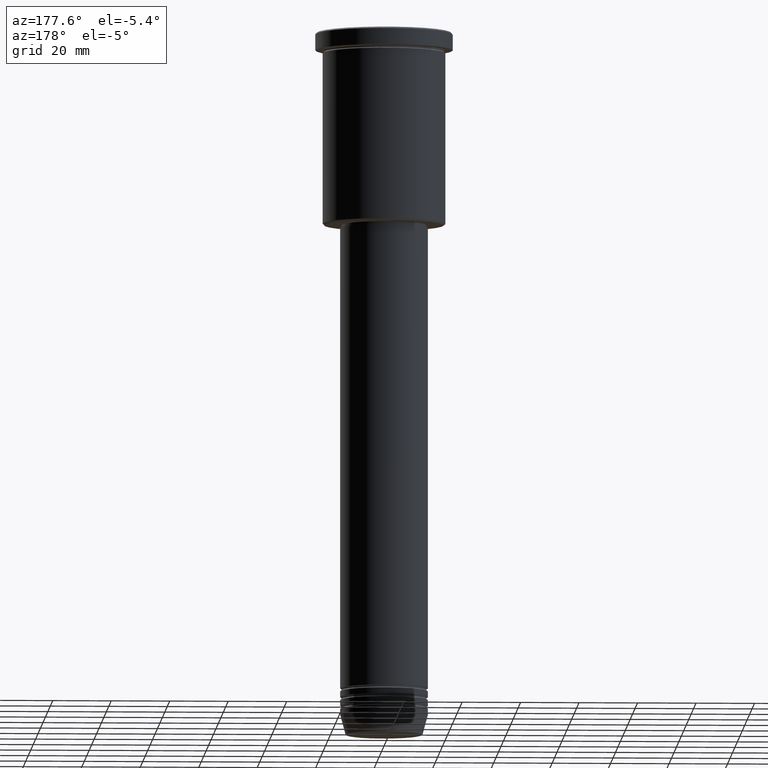
[diagram: clean part render]
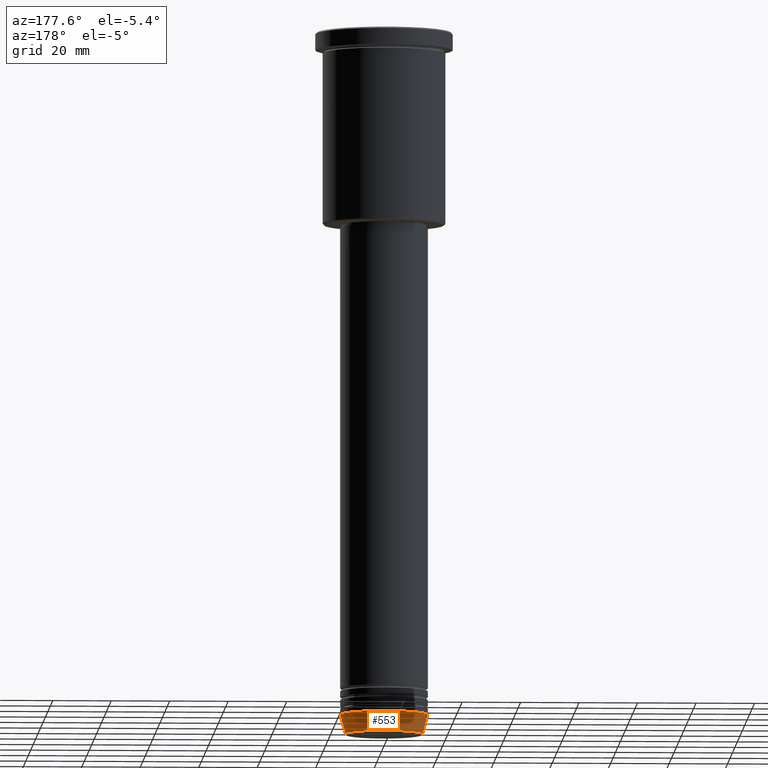
[diagram: same view with one face highlighted and labeled with its STEP entity id]
A machine part, auxiliary view. The second image highlights one B-rep face of the part: STEP entity #553.
In plain terms, the highlighted conical surface has half-angle 15 deg.
Its self-contained STEP definition (entity closure, byte-faithful):
#113 = CARTESIAN_POINT ( 'NONE',  ( 13.22365507213719305, 0.000000000000000000, -240.6294095225512422 ) ) ;
#121 = CARTESIAN_POINT ( 'NONE',  ( -15.00000000000000000, 1.836970198721029589E-15, -234.0000000000000000 ) ) ;
#137 = VECTOR ( 'NONE', #612, 1000.000000000000000 ) ;
#203 = CIRCLE ( 'NONE', #1121, 13.22365507213719305 ) ;
#237 = CARTESIAN_POINT ( 'NONE',  ( -13.22365507213719305, 1.728200442216588583E-15, -240.6294095225512422 ) ) ;
#253 = EDGE_CURVE ( 'NONE', #1104, #742, #690, .T. ) ;
#262 = DIRECTION ( 'NONE',  ( 1.000000000000000000, 0.000000000000000000, 0.000000000000000000 ) ) ;
#275 = CIRCLE ( 'NONE', #741, 15.00000000000000000 ) ;
#318 = CARTESIAN_POINT ( 'NONE',  ( 15.00000000000000000, 0.000000000000000000, -234.0000000000000000 ) ) ;
#344 = DIRECTION ( 'NONE',  ( -0.000000000000000000, -0.000000000000000000, 1.000000000000000000 ) ) ;
#346 = DIRECTION ( 'NONE',  ( -0.000000000000000000, -0.000000000000000000, 1.000000000000000000 ) ) ;
#349 = DIRECTION ( 'NONE',  ( 1.000000000000000000, 0.000000000000000000, 0.000000000000000000 ) ) ;
#379 = LINE ( 'NONE', #121, #1060 ) ;
#437 = CARTESIAN_POINT ( 'NONE',  ( 0.000000000000000000, 0.000000000000000000, -240.6294095225512422 ) ) ;
#438 = EDGE_CURVE ( 'NONE', #1104, #835, #203, .T. ) ;
#476 = DIRECTION ( 'NONE',  ( -0.000000000000000000, -0.000000000000000000, 1.000000000000000000 ) ) ;
#553 = ADVANCED_FACE ( 'NONE', ( #575 ), #875, .T. ) ;
#575 = FACE_OUTER_BOUND ( 'NONE', #651, .T. ) ;
#612 = DIRECTION ( 'NONE',  ( 0.2588190451025213501, 0.000000000000000000, 0.9659258262890680902 ) ) ;
#640 = ORIENTED_EDGE ( 'NONE', *, *, #438, .T. ) ;
#651 = EDGE_LOOP ( 'NONE', ( #640, #653, #927, #1129 ) ) ;
#653 = ORIENTED_EDGE ( 'NONE', *, *, #1064, .T. ) ;
#664 = VERTEX_POINT ( 'NONE', #671 ) ;
#671 = CARTESIAN_POINT ( 'NONE',  ( -15.00000000000000000, 1.836970198721029589E-15, -234.0000000000000000 ) ) ;
#674 = DIRECTION ( 'NONE',  ( -0.2588190451025213501, 3.169619151431772337E-17, 0.9659258262890680902 ) ) ;
#690 = LINE ( 'NONE', #318, #137 ) ;
#741 = AXIS2_PLACEMENT_3D ( 'NONE', #802, #346, #262 ) ;
#742 = VERTEX_POINT ( 'NONE', #1038 ) ;
#802 = CARTESIAN_POINT ( 'NONE',  ( 0.000000000000000000, 0.000000000000000000, -234.0000000000000000 ) ) ;
#834 = DIRECTION ( 'NONE',  ( 1.000000000000000000, 0.000000000000000000, 0.000000000000000000 ) ) ;
#835 = VERTEX_POINT ( 'NONE', #237 ) ;
#875 = CONICAL_SURFACE ( 'NONE', #1155, 15.00000000000000000, 0.2617993877991500740 ) ;
#919 = CARTESIAN_POINT ( 'NONE',  ( 0.000000000000000000, 0.000000000000000000, -234.0000000000000000 ) ) ;
#927 = ORIENTED_EDGE ( 'NONE', *, *, #972, .F. ) ;
#972 = EDGE_CURVE ( 'NONE', #742, #664, #275, .T. ) ;
#1038 = CARTESIAN_POINT ( 'NONE',  ( 15.00000000000000000, 0.000000000000000000, -234.0000000000000000 ) ) ;
#1060 = VECTOR ( 'NONE', #674, 1000.000000000000000 ) ;
#1064 = EDGE_CURVE ( 'NONE', #835, #664, #379, .T. ) ;
#1104 = VERTEX_POINT ( 'NONE', #113 ) ;
#1121 = AXIS2_PLACEMENT_3D ( 'NONE', #437, #344, #349 ) ;
#1129 = ORIENTED_EDGE ( 'NONE', *, *, #253, .F. ) ;
#1155 = AXIS2_PLACEMENT_3D ( 'NONE', #919, #476, #834 ) ;